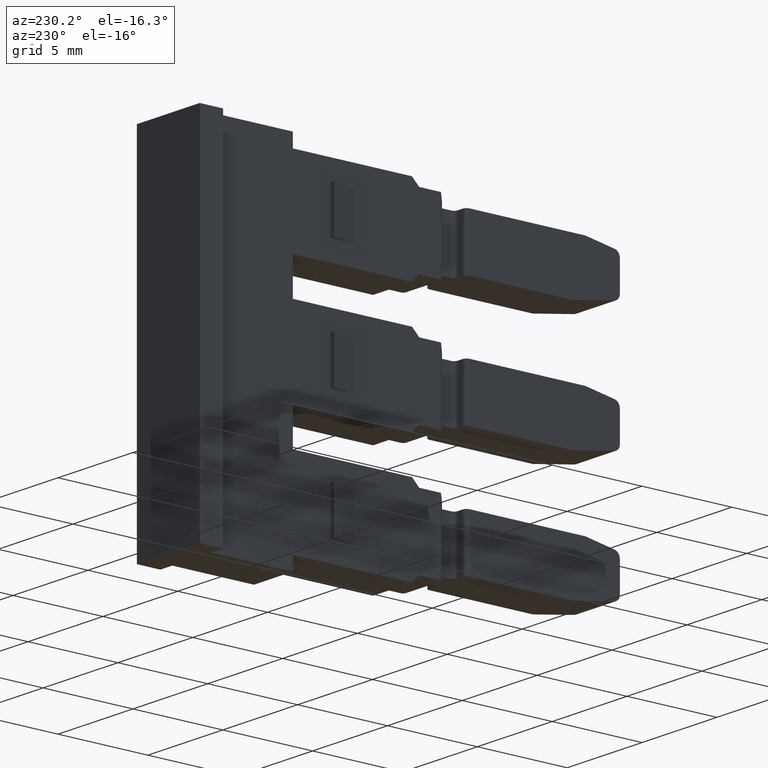
[diagram: clean part render]
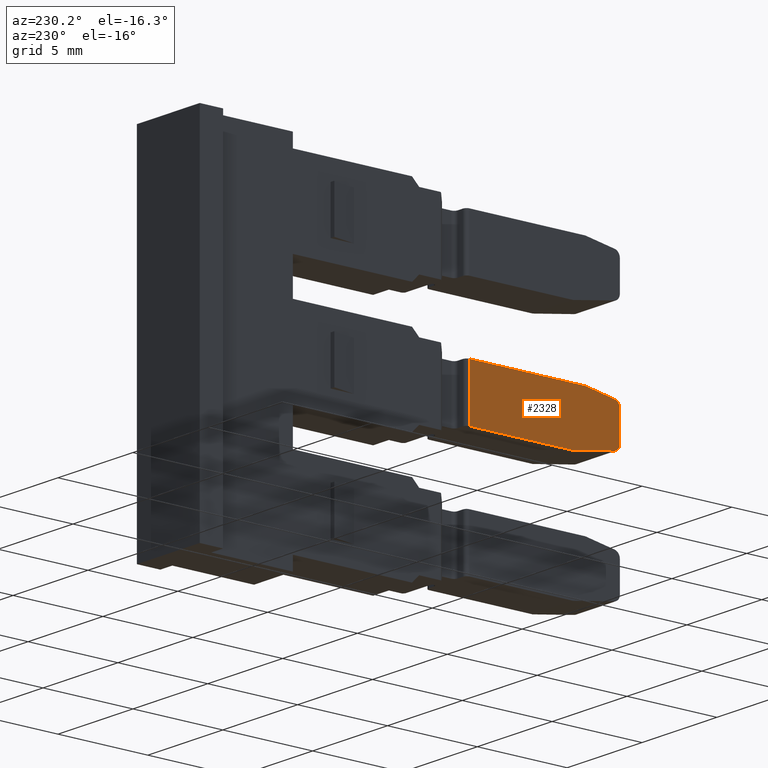
[diagram: same view with one face highlighted and labeled with its STEP entity id]
A machine part, auxiliary view. The second image highlights one B-rep face of the part: STEP entity #2328.
In plain terms, the highlighted planar face has unit normal (-1, 0, -0).
Its self-contained STEP definition (entity closure, byte-faithful):
#92 = EDGE_LOOP ( 'NONE', ( #210, #200, #171, #120, #217, #107, #166, #109 ) ) ;
#107 = ORIENTED_EDGE ( 'NONE', *, *, #2454, .T. ) ;
#109 = ORIENTED_EDGE ( 'NONE', *, *, #2468, .F. ) ;
#120 = ORIENTED_EDGE ( 'NONE', *, *, #2490, .T. ) ;
#166 = ORIENTED_EDGE ( 'NONE', *, *, #2438, .T. ) ;
#171 = ORIENTED_EDGE ( 'NONE', *, *, #2443, .F. ) ;
#200 = ORIENTED_EDGE ( 'NONE', *, *, #2435, .T. ) ;
#210 = ORIENTED_EDGE ( 'NONE', *, *, #2436, .T. ) ;
#217 = ORIENTED_EDGE ( 'NONE', *, *, #2489, .F. ) ;
#887 = AXIS2_PLACEMENT_3D ( 'NONE', #2956, #2918, #2929 ) ;
#955 = VECTOR ( 'NONE', #3451, 1000.000000000000200 ) ;
#959 = VECTOR ( 'NONE', #3492, 1000.000000000000100 ) ;
#973 = VECTOR ( 'NONE', #3467, 1000.000000000000200 ) ;
#975 = CIRCLE ( 'NONE', #1046, 0.3500000000000474400 ) ;
#1008 = CIRCLE ( 'NONE', #1035, 0.3500000000000474400 ) ;
#1012 = VECTOR ( 'NONE', #3519, 1000.000000000000200 ) ;
#1030 = VECTOR ( 'NONE', #3555, 1000.000000000000000 ) ;
#1035 = AXIS2_PLACEMENT_3D ( 'NONE', #3601, #3586, #3603 ) ;
#1044 = VECTOR ( 'NONE', #3608, 1000.000000000000000 ) ;
#1046 = AXIS2_PLACEMENT_3D ( 'NONE', #3489, #3490, #3454 ) ;
#2133 = CARTESIAN_POINT ( 'NONE',  ( 1390.734398344382700, 1055.875568134593800, 1.500000000135636600 ) ) ;
#2146 = CARTESIAN_POINT ( 'NONE',  ( 1390.734459466159300, 1062.320393493786700, -1.499999999846687700 ) ) ;
#2153 = CARTESIAN_POINT ( 'NONE',  ( 1390.734459466159300, 1062.320393493786700, 1.500000000137330800 ) ) ;
#2160 = CARTESIAN_POINT ( 'NONE',  ( 1390.734380130579400, 1053.955061464480000, 0.8676779866391450800 ) ) ;
#2169 = CARTESIAN_POINT ( 'NONE',  ( 1390.734380130579900, 1053.955061464480400, -0.7471850652951433900 ) ) ;
#2173 = CARTESIAN_POINT ( 'NONE',  ( 1390.734382873530000, 1054.244284602283600, -1.091867778849471700 ) ) ;
#2203 = CARTESIAN_POINT ( 'NONE',  ( 1390.734404825189800, 1056.558919818087100, -1.499999999846753500 ) ) ;
#2207 = CARTESIAN_POINT ( 'NONE',  ( 1390.734382873529500, 1054.244284602283400, 1.212360700193411100 ) ) ;
#2328 = ADVANCED_FACE ( 'NONE', ( #2915 ), #2921, .T. ) ;
#2435 = EDGE_CURVE ( 'NONE', #3790, #3739, #3466, .T. ) ;
#2436 = EDGE_CURVE ( 'NONE', #3748, #3790, #3472, .T. ) ;
#2438 = EDGE_CURVE ( 'NONE', #3740, #3761, #3461, .T. ) ;
#2443 = EDGE_CURVE ( 'NONE', #3753, #3739, #975, .T. ) ;
#2454 = EDGE_CURVE ( 'NONE', #3775, #3740, #3500, .T. ) ;
#2468 = EDGE_CURVE ( 'NONE', #3748, #3761, #3573, .T. ) ;
#2489 = EDGE_CURVE ( 'NONE', #3775, #3745, #1008, .T. ) ;
#2490 = EDGE_CURVE ( 'NONE', #3753, #3745, #3604, .T. ) ;
#2915 = FACE_OUTER_BOUND ( 'NONE', #92, .T. ) ;
#2918 = DIRECTION ( 'NONE',  ( -0.9999999999550283100, 9.483853007369368500E-006, -3.653909838536006900E-024 ) ) ;
#2921 = PLANE ( 'NONE',  #887 ) ;
#2929 = DIRECTION ( 'NONE',  ( -9.483853007369366800E-006, -0.9999999999550282000, 0.0000000000000000000 ) ) ;
#2956 = CARTESIAN_POINT ( 'NONE',  ( 1390.734307297966100, 1046.275417586839900, 3.306031936523130100 ) ) ;
#3451 = DIRECTION ( 'NONE',  ( 9.483853007369366800E-006, 0.9999999999550282000, -0.0000000000000000000 ) ) ;
#3454 = DIRECTION ( 'NONE',  ( 9.483855605601561700E-006, 0.9999999999550282000, 0.0000000000000000000 ) ) ;
#3461 = LINE ( 'NONE', #3464, #955 ) ;
#3464 = CARTESIAN_POINT ( 'NONE',  ( 1390.734307297966100, 1046.275417586839900, 1.500000000136007200 ) ) ;
#3466 = LINE ( 'NONE', #3484, #959 ) ;
#3467 = DIRECTION ( 'NONE',  ( -9.483853007369366800E-006, -0.9999999999550282000, 0.0000000000000000000 ) ) ;
#3470 = CARTESIAN_POINT ( 'NONE',  ( 1390.734307297966100, 1046.275417586839900, -1.499999999846689100 ) ) ;
#3472 = LINE ( 'NONE', #3470, #973 ) ;
#3484 = CARTESIAN_POINT ( 'NONE',  ( 1390.734404825167100, 1056.558917447122900, -1.499999999849507900 ) ) ;
#3489 = CARTESIAN_POINT ( 'NONE',  ( 1390.734383449929300, 1054.305061464464900, -0.7471850652951437200 ) ) ;
#3490 = DIRECTION ( 'NONE',  ( 0.9999999999550283100, -9.483855583750710300E-006, 1.714874837315605300E-015 ) ) ;
#3492 = DIRECTION ( 'NONE',  ( -9.339771949356923300E-006, -0.9848077529677332600, 0.1736481776679870100 ) ) ;
#3497 = CARTESIAN_POINT ( 'NONE',  ( 1390.734382873529500, 1054.244284602283200, 1.212360700193368100 ) ) ;
#3500 = LINE ( 'NONE', #3497, #1012 ) ;
#3519 = DIRECTION ( 'NONE',  ( 9.339771988604050900E-006, 0.9848077529676954000, 0.1736481776682011800 ) ) ;
#3555 = DIRECTION ( 'NONE',  ( -3.653909838371683000E-024, 3.465315322472135600E-029, 1.000000000000000000 ) ) ;
#3573 = LINE ( 'NONE', #3575, #1030 ) ;
#3575 = CARTESIAN_POINT ( 'NONE',  ( 1390.734459466159300, 1062.320393493786900, 3.306031936523130100 ) ) ;
#3586 = DIRECTION ( 'NONE',  ( 0.9999999999550283100, -9.483855583750710300E-006, 1.714874837315605300E-015 ) ) ;
#3601 = CARTESIAN_POINT ( 'NONE',  ( 1390.734383449928400, 1054.305061464464900, 0.8676779866391446400 ) ) ;
#3603 = DIRECTION ( 'NONE',  ( 9.483855605601561700E-006, 0.9999999999550282000, 0.0000000000000000000 ) ) ;
#3604 = LINE ( 'NONE', #3607, #1044 ) ;
#3607 = CARTESIAN_POINT ( 'NONE',  ( 1390.734380130579900, 1053.955061464480000, -0.7471850652951577100 ) ) ;
#3608 = DIRECTION ( 'NONE',  ( 0.0000000000000000000, 0.0000000000000000000, 1.000000000000000000 ) ) ;
#3739 = VERTEX_POINT ( 'NONE', #2173 ) ;
#3740 = VERTEX_POINT ( 'NONE', #2133 ) ;
#3745 = VERTEX_POINT ( 'NONE', #2160 ) ;
#3748 = VERTEX_POINT ( 'NONE', #2146 ) ;
#3753 = VERTEX_POINT ( 'NONE', #2169 ) ;
#3761 = VERTEX_POINT ( 'NONE', #2153 ) ;
#3775 = VERTEX_POINT ( 'NONE', #2207 ) ;
#3790 = VERTEX_POINT ( 'NONE', #2203 ) ;